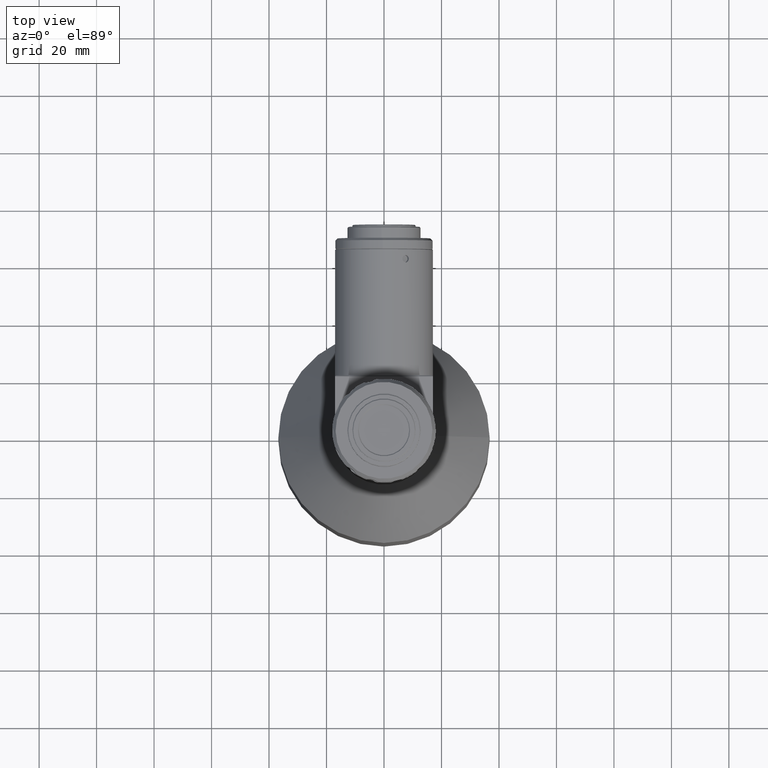
[diagram: clean part render]
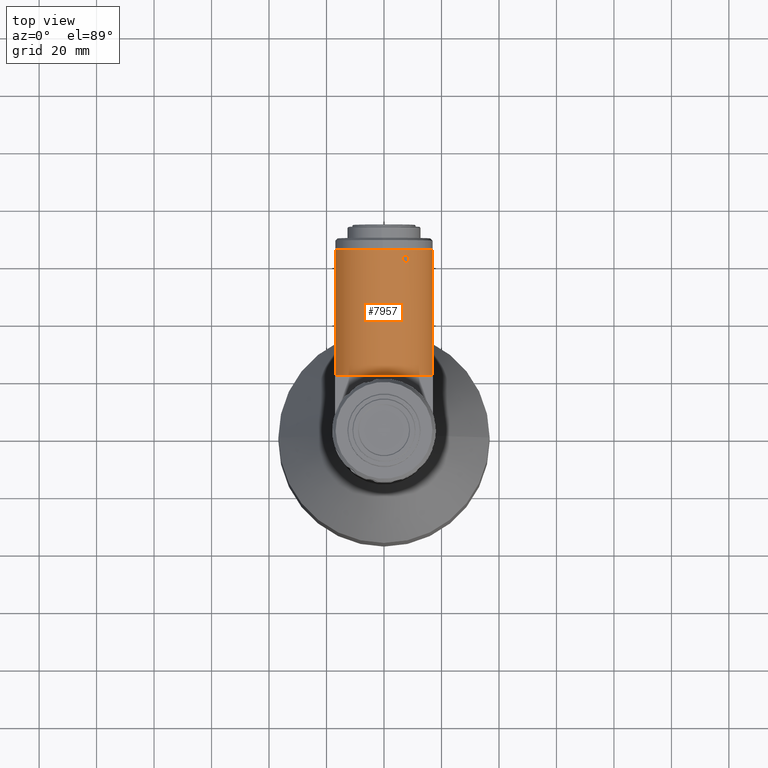
[diagram: same view with one face highlighted and labeled with its STEP entity id]
A machine part, top view. The second image highlights one B-rep face of the part: STEP entity #7957.
In plain terms, the highlighted cylindrical surface (partial cylindrical patch) has radius 17 mm, axis along (-0, -1, -0).
Its self-contained STEP definition (entity closure, byte-faithful):
#16 = CARTESIAN_POINT ( 'NONE',  ( -16.99927782112979100, 60.52058060247128400, 33.08800425903633900 ) ) ;
#127 = CARTESIAN_POINT ( 'NONE',  ( 6.540208182804986100, 61.25393631298310000, 48.62301242302051900 ) ) ;
#234 = ORIENTED_EDGE ( 'NONE', *, *, #3702, .F. ) ;
#469 = ORIENTED_EDGE ( 'NONE', *, *, #2051, .T. ) ;
#527 = CARTESIAN_POINT ( 'NONE',  ( -1.613648740661793200E-013, 20.00000000000029500, 32.93130850271085600 ) ) ;
#581 = DIRECTION ( 'NONE',  ( 0.06433384176585757500, 8.163404592832026100E-016, -0.9979284327062966100 ) ) ;
#617 = CARTESIAN_POINT ( 'NONE',  ( 8.094183363371707100, 59.53301496947036500, 47.88145368077091700 ) ) ;
#652 = ORIENTED_EDGE ( 'NONE', *, *, #9428, .T. ) ;
#796 = EDGE_CURVE ( 'NONE', #6795, #10299, #8446, .T. ) ;
#820 = CARTESIAN_POINT ( 'NONE',  ( -16.99941791055145400, 60.41412945740564300, 33.07442073986045000 ) ) ;
#920 = CARTESIAN_POINT ( 'NONE',  ( 8.635341416207772600, 60.62544900000003900, 47.57476706363576800 ) ) ;
#1026 = AXIS2_PLACEMENT_3D ( 'NONE', #8380, #3038, #3934 ) ;
#1055 = CARTESIAN_POINT ( 'NONE',  ( 7.239834185496643900, 61.84262286287445000, 48.31336549458148300 ) ) ;
#1178 = EDGE_CURVE ( 'NONE', #11497, #6519, #5920, .T. ) ;
#1243 = CARTESIAN_POINT ( 'NONE',  ( 8.090778691159128400, 61.71084259583322800, 47.88269375437585800 ) ) ;
#1251 = AXIS2_PLACEMENT_3D ( 'NONE', #10173, #9403, #5766 ) ;
#1420 = DIRECTION ( 'NONE',  ( -1.227316859253525200E-016, -1.000000000000000000, -5.319949245483733800E-016 ) ) ;
#1542 = CARTESIAN_POINT ( 'NONE',  ( 8.606683041295772400, 60.95477533474812800, 47.59176305022986500 ) ) ;
#1567 = FACE_BOUND ( 'NONE', #4843, .T. ) ;
#1632 = CARTESIAN_POINT ( 'NONE',  ( -17.00000000000016700, 60.02016037772669000, 32.93130850271089800 ) ) ;
#1694 = EDGE_CURVE ( 'NONE', #7807, #3995, #7375, .T. ) ;
#1819 = ORIENTED_EDGE ( 'NONE', *, *, #8150, .F. ) ;
#1871 = B_SPLINE_CURVE_WITH_KNOTS ( 'NONE', 3,
 ( #5332, #16, #820, #3393, #5171, #1632 ),
 .UNSPECIFIED., .F., .F.,
 ( 4, 2, 4 ),
 ( 0.001955142307231557000, 0.002269299942410291500, 0.002583457577589026000 ),
 .UNSPECIFIED. ) ;
#1945 = CARTESIAN_POINT ( 'NONE',  ( 7.826621520512820700, 61.84320697637160400, 48.02325909464223500 ) ) ;
#2051 = EDGE_CURVE ( 'NONE', #11167, #8670, #1871, .T. ) ;
#2125 = FACE_OUTER_BOUND ( 'NONE', #7875, .T. ) ;
#2137 = DIRECTION ( 'NONE',  ( -1.000000000000000000, 2.040851148208008200E-016, 2.857191607491211600E-015 ) ) ;
#2273 = DIRECTION ( 'NONE',  ( -1.000000000000000000, 2.040851148208008200E-016, 2.857191607491211600E-015 ) ) ;
#2294 = CARTESIAN_POINT ( 'NONE',  ( 7.681861923501606300, 59.37550762309950200, 48.09757388249327200 ) ) ;
#2333 = DIRECTION ( 'NONE',  ( -1.227316859253475900E-016, -1.000000000000000000, -5.319949245483742700E-016 ) ) ;
#2523 = CARTESIAN_POINT ( 'NONE',  ( -17.00000000000016700, 61.23073762227321000, 32.93130850271097600 ) ) ;
#2692 = CARTESIAN_POINT ( 'NONE',  ( 6.838052008597968800, 61.62402807601710500, 48.49583035416893000 ) ) ;
#2718 = EDGE_CURVE ( 'NONE', #8670, #10299, #4839, .T. ) ;
#2774 = ORIENTED_EDGE ( 'NONE', *, *, #11022, .T. ) ;
#2829 = CARTESIAN_POINT ( 'NONE',  ( -17.00000000000016300, 11.00000000000029800, 32.93130850271089800 ) ) ;
#2886 = DIRECTION ( 'NONE',  ( -1.000000000000000000, 2.040851148208008200E-016, 2.857191607491211600E-015 ) ) ;
#3038 = DIRECTION ( 'NONE',  ( -1.227316859253475900E-016, -1.000000000000000000, -5.319949245483742700E-016 ) ) ;
#3042 = AXIS2_PLACEMENT_3D ( 'NONE', #6462, #4709, #2137 ) ;
#3145 = VERTEX_POINT ( 'NONE', #6005 ) ;
#3189 = CARTESIAN_POINT ( 'NONE',  ( 6.966266830562551200, 59.53306046697225900, 48.43917940097610100 ) ) ;
#3230 = CARTESIAN_POINT ( 'NONE',  ( 8.635341416207772600, 60.62544900000003900, 47.57476706363576800 ) ) ;
#3234 = CIRCLE ( 'NONE', #3042, 17.00000000000000000 ) ;
#3236 = ORIENTED_EDGE ( 'NONE', *, *, #2718, .T. ) ;
#3263 = CARTESIAN_POINT ( 'NONE',  ( 8.417921503622478600, 59.85666945905271800, 47.70127567535016100 ) ) ;
#3393 = CARTESIAN_POINT ( 'NONE',  ( -16.99977908395620200, 60.21128347172083300, 33.02187067298398700 ) ) ;
#3447 = CARTESIAN_POINT ( 'NONE',  ( -17.00000000000016700, 60.02016037772669000, 32.93130850271089800 ) ) ;
#3527 = CYLINDRICAL_SURFACE ( 'NONE', #1251, 17.00000000000000000 ) ;
#3543 = CARTESIAN_POINT ( 'NONE',  ( 8.027525186363517300, 61.74919257465575800, 47.91678759601853000 ) ) ;
#3554 = CARTESIAN_POINT ( 'NONE',  ( -1.613648740661793200E-013, 20.00000000000029500, 32.93130850271085600 ) ) ;
#3588 = EDGE_CURVE ( 'NONE', #4987, #3145, #6143, .T. ) ;
#3623 = CARTESIAN_POINT ( 'NONE',  ( 6.394345679294235500, 60.78860163635982900, 48.68289075128797100 ) ) ;
#3702 = EDGE_CURVE ( 'NONE', #11283, #4395, #9638, .T. ) ;
#3741 = CARTESIAN_POINT ( 'NONE',  ( 8.210087397201714800, 61.62029975530743500, 47.81751304595590600 ) ) ;
#3778 = CARTESIAN_POINT ( 'NONE',  ( -1.613648740661793200E-013, 20.00000000000029500, 32.93130850271085600 ) ) ;
#3895 = ORIENTED_EDGE ( 'NONE', *, *, #3588, .F. ) ;
#3934 = DIRECTION ( 'NONE',  ( 0.06433384176585757500, 8.163404592832026100E-016, -0.9979284327062966100 ) ) ;
#3974 = ORIENTED_EDGE ( 'NONE', *, *, #1178, .T. ) ;
#3995 = VERTEX_POINT ( 'NONE', #11458 ) ;
#4001 = ORIENTED_EDGE ( 'NONE', *, *, #11013, .T. ) ;
#4048 = CARTESIAN_POINT ( 'NONE',  ( 6.453565679020324600, 60.22281953436890200, 48.65875198481740000 ) ) ;
#4058 = AXIS2_PLACEMENT_3D ( 'NONE', #3554, #6192, #4526 ) ;
#4166 = CARTESIAN_POINT ( 'NONE',  ( 7.389424499837210700, 59.37539053790528200, 48.24218743708087900 ) ) ;
#4173 = CARTESIAN_POINT ( 'NONE',  ( -1.697352264374592000E-013, 63.92544900000000800, 32.93130850271087700 ) ) ;
#4395 = VERTEX_POINT ( 'NONE', #6995 ) ;
#4526 = DIRECTION ( 'NONE',  ( -1.000000000000000000, 2.040851148208008200E-016, 2.857191607491211600E-015 ) ) ;
#4709 = DIRECTION ( 'NONE',  ( -1.227316859253525200E-016, -1.000000000000000000, -5.319949245483733800E-016 ) ) ;
#4839 = LINE ( 'NONE', #2829, #8206 ) ;
#4840 = DIRECTION ( 'NONE',  ( -1.227316859253525200E-016, -1.000000000000000000, -5.319949245483733800E-016 ) ) ;
#4843 = EDGE_LOOP ( 'NONE', ( #2774, #6896 ) ) ;
#4931 = CARTESIAN_POINT ( 'NONE',  ( 6.625567033049489600, 59.85807650143596700, 48.58747420084522900 ) ) ;
#4974 = CARTESIAN_POINT ( 'NONE',  ( 6.540757954914235800, 59.99563988277059700, 48.62278514451771400 ) ) ;
#4987 = VERTEX_POINT ( 'NONE', #5834 ) ;
#5004 = CARTESIAN_POINT ( 'NONE',  ( 8.498525115576084600, 59.99531131273246800, 47.65472619569201400 ) ) ;
#5171 = CARTESIAN_POINT ( 'NONE',  ( -17.00000000000017400, 60.11234297662146300, 32.98243236471724100 ) ) ;
#5253 = CARTESIAN_POINT ( 'NONE',  ( -16.99927782112979500, 60.73054035038587300, 33.08800425903633900 ) ) ;
#5298 = CARTESIAN_POINT ( 'NONE',  ( -16.99978146346521500, 61.04092922325896400, 33.02151397653845100 ) ) ;
#5332 = CARTESIAN_POINT ( 'NONE',  ( -16.99927782112979100, 60.62544900000001000, 33.08800425903633900 ) ) ;
#5373 = DIRECTION ( 'NONE',  ( -1.227316859253525200E-016, -1.000000000000000000, -5.319949245483733800E-016 ) ) ;
#5474 = CARTESIAN_POINT ( 'NONE',  ( 6.394345679286580300, 60.62544899999952000, 48.68289075129108300 ) ) ;
#5637 = DIRECTION ( 'NONE',  ( -1.227316859253525200E-016, -1.000000000000000000, -5.319949245483733800E-016 ) ) ;
#5766 = DIRECTION ( 'NONE',  ( -1.000000000000000000, 1.020425574104004100E-016, 2.857191607491211600E-015 ) ) ;
#5834 = CARTESIAN_POINT ( 'NONE',  ( 16.99999999999982900, 63.92544900000000800, 32.93130850271082700 ) ) ;
#5837 = AXIS2_PLACEMENT_3D ( 'NONE', #527, #1420, #2273 ) ;
#5920 = LINE ( 'NONE', #7371, #9153 ) ;
#5937 = CARTESIAN_POINT ( 'NONE',  ( -16.70000000000019500, 20.00000000000029500, 36.11093112182759800 ) ) ;
#5953 = CARTESIAN_POINT ( 'NONE',  ( 6.394345679286580300, 60.62544899999952000, 48.68289075129108300 ) ) ;
#5958 = CIRCLE ( 'NONE', #5837, 17.00000000000000000 ) ;
#6005 = CARTESIAN_POINT ( 'NONE',  ( 16.99999999999983700, 20.00000000000029100, 32.93130850271082700 ) ) ;
#6042 = AXIS2_PLACEMENT_3D ( 'NONE', #3778, #5637, #2886 ) ;
#6084 = EDGE_CURVE ( 'NONE', #4395, #8385, #5958, .T. ) ;
#6143 = LINE ( 'NONE', #8035, #8534 ) ;
#6191 = CARTESIAN_POINT ( 'NONE',  ( -16.99927782112979100, 60.62544900000001000, 33.08800425903633900 ) ) ;
#6192 = DIRECTION ( 'NONE',  ( -1.227316859253525200E-016, -1.000000000000000000, -5.319949245483733800E-016 ) ) ;
#6248 = EDGE_CURVE ( 'NONE', #3145, #11283, #6900, .T. ) ;
#6381 = CARTESIAN_POINT ( 'NONE',  ( 6.424819581028035700, 60.95306959857012400, 48.67060926063304300 ) ) ;
#6393 = DIRECTION ( 'NONE',  ( -1.227316859253525200E-016, -1.000000000000000000, -5.319949245483733800E-016 ) ) ;
#6462 = CARTESIAN_POINT ( 'NONE',  ( -1.613648740661793200E-013, 20.00000000000029500, 32.93130850271085600 ) ) ;
#6519 = VERTEX_POINT ( 'NONE', #2523 ) ;
#6755 = CARTESIAN_POINT ( 'NONE',  ( 8.417595200355686200, 61.39472236956849800, 47.70146227635974900 ) ) ;
#6795 = VERTEX_POINT ( 'NONE', #5937 ) ;
#6896 = ORIENTED_EDGE ( 'NONE', *, *, #1694, .T. ) ;
#6900 = CIRCLE ( 'NONE', #4058, 17.00000000000000000 ) ;
#6995 = CARTESIAN_POINT ( 'NONE',  ( 3.179622619116604400, 20.00000000000028100, 49.63130850271088700 ) ) ;
#7118 = CARTESIAN_POINT ( 'NONE',  ( 6.626291330407025400, 61.39340508350832700, 48.58715593877701600 ) ) ;
#7132 = CARTESIAN_POINT ( 'NONE',  ( -1.093675310019747400, 63.92544899999999300, 49.89609185871793100 ) ) ;
#7198 = CARTESIAN_POINT ( 'NONE',  ( 6.965001006592650900, 61.71702122471090500, 48.43974611946661900 ) ) ;
#7220 = DIRECTION ( 'NONE',  ( -1.227316859253525200E-016, -1.000000000000000000, -5.319949245483733800E-016 ) ) ;
#7276 = CARTESIAN_POINT ( 'NONE',  ( 7.386430923879599300, 61.87531612833793600, 48.24365200068422200 ) ) ;
#7284 = CARTESIAN_POINT ( 'NONE',  ( -16.99927782112979100, 60.62544900000001000, 33.08800425903633900 ) ) ;
#7316 = CARTESIAN_POINT ( 'NONE',  ( -3.179622619116926800, 20.00000000000028100, 49.63130850271088700 ) ) ;
#7371 = CARTESIAN_POINT ( 'NONE',  ( -17.00000000000016300, 11.00000000000029800, 32.93130850271089800 ) ) ;
#7375 = B_SPLINE_CURVE_WITH_KNOTS ( 'NONE', 3,
 ( #5474, #3623, #6381, #127, #7118, #2692, #7198, #1055, #7276, #8191, #1945, #3543, #1243, #3741, #9273, #6755, #8610, #1542, #11378, #920 ),
 .UNSPECIFIED., .F., .F.,
 ( 4, 2, 2, 2, 2, 2, 2, 2, 2, 4 ),
 ( 0.003909388258064620600, 0.004397949155370876700, 0.004886510052677132800, 0.005375070949983388900, 0.005863631847289645800, 0.006352192744595901900, 0.006596473193249035100, 0.006840753641902170100, 0.007329314539208463400, 0.007817875436514756800 ),
 .UNSPECIFIED. ) ;
#7463 = CARTESIAN_POINT ( 'NONE',  ( -1.613648740661793200E-013, 20.00000000000029500, 32.93130850271085600 ) ) ;
#7742 = CARTESIAN_POINT ( 'NONE',  ( 6.394345679294419300, 60.54385387485979900, 48.68289075128790700 ) ) ;
#7807 = VERTEX_POINT ( 'NONE', #9915 ) ;
#7875 = EDGE_LOOP ( 'NONE', ( #3895, #10877, #4001, #3974, #652, #469, #3236, #9697, #1819, #9375, #234, #8219 ) ) ;
#7896 = AXIS2_PLACEMENT_3D ( 'NONE', #4173, #2333, #581 ) ;
#7921 = B_SPLINE_CURVE_WITH_KNOTS ( 'NONE', 3,
 ( #3230, #8613, #10351, #5004, #3263, #9499, #617, #8495, #2294, #4166, #8536, #3189, #9430, #4931, #4974, #4048, #10309, #10388, #7742, #5953 ),
 .UNSPECIFIED., .F., .F.,
 ( 4, 2, 2, 2, 2, 2, 2, 2, 2, 4 ),
 ( 0.0000000000000000000, 0.0004886735322580780100, 0.0009773470645161560300, 0.001466020596774234100, 0.001954694129032312100, 0.002443367661290390200, 0.002932041193548468300, 0.003420714725806546000, 0.003665051491935583300, 0.003909388258064620600 ),
 .UNSPECIFIED. ) ;
#7957 = ADVANCED_FACE ( 'NONE', ( #2125, #1567 ), #3527, .T. ) ;
#8035 = CARTESIAN_POINT ( 'NONE',  ( 16.99999999999983700, 11.00000000000029500, 32.93130850271080600 ) ) ;
#8150 = EDGE_CURVE ( 'NONE', #8385, #6795, #3234, .T. ) ;
#8182 = EDGE_CURVE ( 'NONE', #4987, #10673, #10337, .T. ) ;
#8191 = CARTESIAN_POINT ( 'NONE',  ( 7.682252044901845900, 61.87558106597545300, 48.09739661770520800 ) ) ;
#8206 = VECTOR ( 'NONE', #7220, 1000.000000000000000 ) ;
#8219 = ORIENTED_EDGE ( 'NONE', *, *, #6248, .F. ) ;
#8369 = DIRECTION ( 'NONE',  ( -1.000000000000000000, 2.040851148208008200E-016, 2.857191607491211600E-015 ) ) ;
#8380 = CARTESIAN_POINT ( 'NONE',  ( -1.697352264374592000E-013, 63.92544900000000800, 32.93130850271087700 ) ) ;
#8385 = VERTEX_POINT ( 'NONE', #7316 ) ;
#8446 = CIRCLE ( 'NONE', #9848, 17.00000000000000000 ) ;
#8495 = CARTESIAN_POINT ( 'NONE',  ( 7.828259932458283100, 59.40834196863496400, 48.02239831076727900 ) ) ;
#8534 = VECTOR ( 'NONE', #5373, 1000.000000000000000 ) ;
#8536 = CARTESIAN_POINT ( 'NONE',  ( 7.241430568863225200, 59.40778587403192300, 48.31261588109036600 ) ) ;
#8610 = CARTESIAN_POINT ( 'NONE',  ( 8.498456911263916800, 61.25544258454166900, 47.65476430087828400 ) ) ;
#8613 = CARTESIAN_POINT ( 'NONE',  ( 8.635341416207778000, 60.46020817463758600, 47.57476706363578200 ) ) ;
#8670 = VERTEX_POINT ( 'NONE', #3447 ) ;
#8756 = B_SPLINE_CURVE_WITH_KNOTS ( 'NONE', 3,
 ( #9751, #10633, #5298, #11508, #5253, #6191 ),
 .UNSPECIFIED., .F., .F.,
 ( 4, 2, 4 ),
 ( 0.001325491222768100700, 0.001640316764999828800, 0.001955142307231557000 ),
 .UNSPECIFIED. ) ;
#9153 = VECTOR ( 'NONE', #6393, 1000.000000000000000 ) ;
#9273 = CARTESIAN_POINT ( 'NONE',  ( 8.266430417394923700, 61.56756811586393500, 47.78625602930742400 ) ) ;
#9375 = ORIENTED_EDGE ( 'NONE', *, *, #6084, .F. ) ;
#9403 = DIRECTION ( 'NONE',  ( -1.227316859253525200E-016, -1.000000000000000000, -5.319949245483733800E-016 ) ) ;
#9428 = EDGE_CURVE ( 'NONE', #6519, #11167, #8756, .T. ) ;
#9430 = CARTESIAN_POINT ( 'NONE',  ( 6.840227211848481500, 59.62470758801498500, 48.49488632296668600 ) ) ;
#9465 = CIRCLE ( 'NONE', #7896, 17.00000000000001400 ) ;
#9499 = CARTESIAN_POINT ( 'NONE',  ( 8.216512937267811600, 59.62613269018808600, 47.81426008745046400 ) ) ;
#9638 = CIRCLE ( 'NONE', #6042, 17.00000000000000000 ) ;
#9697 = ORIENTED_EDGE ( 'NONE', *, *, #796, .F. ) ;
#9751 = CARTESIAN_POINT ( 'NONE',  ( -17.00000000000016700, 61.23073762227321000, 32.93130850271097600 ) ) ;
#9848 = AXIS2_PLACEMENT_3D ( 'NONE', #7463, #4840, #8369 ) ;
#9915 = CARTESIAN_POINT ( 'NONE',  ( 6.394345679286580300, 60.62544899999952000, 48.68289075129108300 ) ) ;
#10173 = CARTESIAN_POINT ( 'NONE',  ( -1.624694592395075500E-013, 11.00000000000029700, 32.93130850271084900 ) ) ;
#10299 = VERTEX_POINT ( 'NONE', #10473 ) ;
#10309 = CARTESIAN_POINT ( 'NONE',  ( 6.431627500463569000, 60.30075011707617700, 48.66771293777986100 ) ) ;
#10337 = CIRCLE ( 'NONE', #1026, 17.00000000000001400 ) ;
#10351 = CARTESIAN_POINT ( 'NONE',  ( 8.607261941135822900, 60.29806650260235300, 47.59142444968559000 ) ) ;
#10388 = CARTESIAN_POINT ( 'NONE',  ( 6.401945562400423600, 60.46097907084377000, 48.67981160188953300 ) ) ;
#10473 = CARTESIAN_POINT ( 'NONE',  ( -17.00000000000016300, 20.00000000000029800, 32.93130850271092000 ) ) ;
#10576 = CARTESIAN_POINT ( 'NONE',  ( -17.00000000000017100, 63.92544900000000800, 32.93130850271092000 ) ) ;
#10633 = CARTESIAN_POINT ( 'NONE',  ( -17.00000000000017100, 61.13836609027001100, 32.98253714577445100 ) ) ;
#10673 = VERTEX_POINT ( 'NONE', #7132 ) ;
#10877 = ORIENTED_EDGE ( 'NONE', *, *, #8182, .T. ) ;
#10970 = CARTESIAN_POINT ( 'NONE',  ( 16.69999999999987500, 20.00000000000028800, 36.11093112182756200 ) ) ;
#11013 = EDGE_CURVE ( 'NONE', #10673, #11497, #9465, .T. ) ;
#11022 = EDGE_CURVE ( 'NONE', #3995, #7807, #7921, .T. ) ;
#11167 = VERTEX_POINT ( 'NONE', #7284 ) ;
#11283 = VERTEX_POINT ( 'NONE', #10970 ) ;
#11378 = CARTESIAN_POINT ( 'NONE',  ( 8.635341416207772600, 60.79065173880536600, 47.57476706363576100 ) ) ;
#11458 = CARTESIAN_POINT ( 'NONE',  ( 8.635341416207772600, 60.62544900000003900, 47.57476706363576800 ) ) ;
#11497 = VERTEX_POINT ( 'NONE', #10576 ) ;
#11508 = CARTESIAN_POINT ( 'NONE',  ( -16.99941616356850500, 60.83580905593552800, 33.07468538679523100 ) ) ;